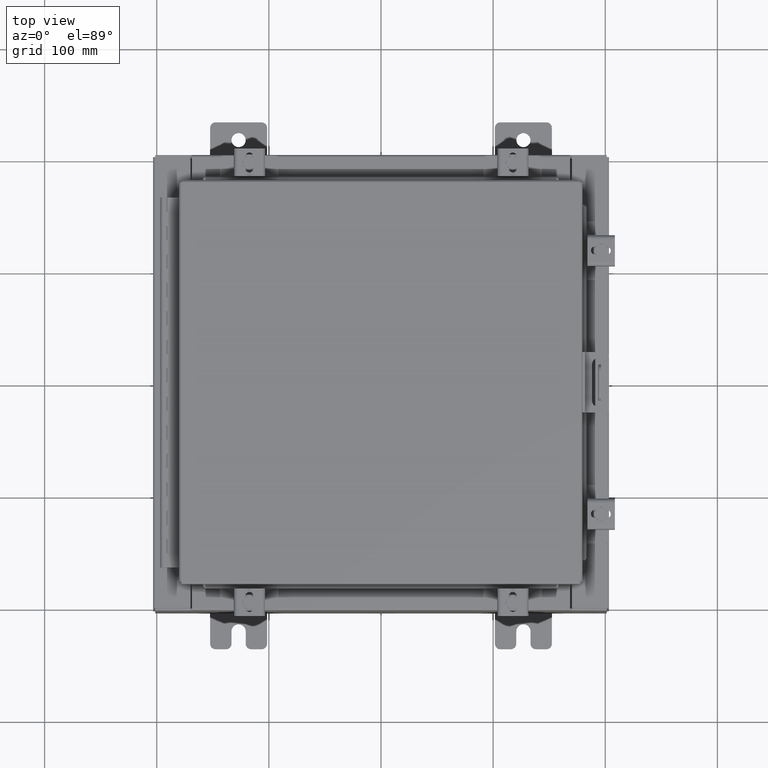
[diagram: clean part render]
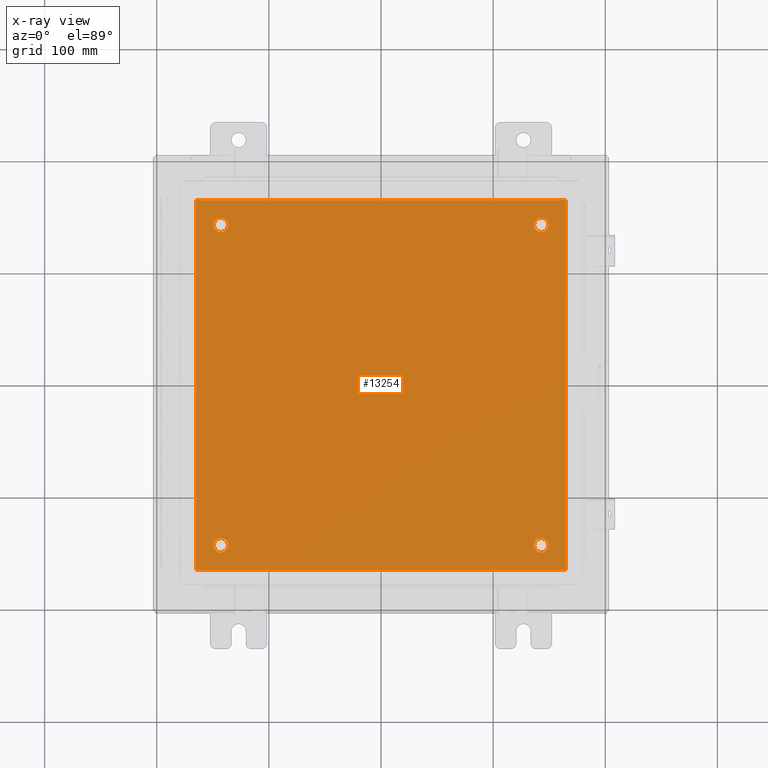
[diagram: x-ray — body ghosted, one internal face saturated and labeled with its STEP entity id]
A machine part, top view, then the same camera in x-ray: the body is ghosted and one INTERNAL B-rep face — a face not visible from any outside direction — is saturated and labeled: STEP entity #13254.
In plain terms, the highlighted planar face has unit normal (0, 0, -1).
Its self-contained STEP definition (entity closure, byte-faithful):
#26 = CARTESIAN_POINT ( 'NONE',  ( 5.625000000000002700, 5.625000000000000900, -0.1039999999999999800 ) ) ;
#244 = EDGE_CURVE ( 'NONE', #3936, #2826, #25304, .T. ) ;
#536 = CIRCLE ( 'NONE', #16448, 0.2499999999999998100 ) ;
#596 = DIRECTION ( 'NONE',  ( -0.0000000000000000000, -0.0000000000000000000, 1.000000000000000000 ) ) ;
#855 = CARTESIAN_POINT ( 'NONE',  ( -6.500000000000000000, 6.500000000000000900, -0.1039999999999999800 ) ) ;
#889 = DIRECTION ( 'NONE',  ( -1.000000000000000000, -0.0000000000000000000, -0.0000000000000000000 ) ) ;
#1028 = DIRECTION ( 'NONE',  ( -1.000000000000000000, 0.0000000000000000000, -0.0000000000000000000 ) ) ;
#1221 = VECTOR ( 'NONE', #6031, 39.37007874015748100 ) ;
#1393 = CARTESIAN_POINT ( 'NONE',  ( 6.500000000000000000, 6.500000000000000900, -0.1039999999999999800 ) ) ;
#1454 = VERTEX_POINT ( 'NONE', #15500 ) ;
#1573 = EDGE_CURVE ( 'NONE', #3767, #3630, #22411, .T. ) ;
#1690 = ORIENTED_EDGE ( 'NONE', *, *, #17272, .T. ) ;
#1705 = LINE ( 'NONE', #13013, #5186 ) ;
#1847 = CARTESIAN_POINT ( 'NONE',  ( 6.500000000000000000, -6.499999999999999100, -0.1039999999999999800 ) ) ;
#2002 = CARTESIAN_POINT ( 'NONE',  ( -5.375000000000002700, -5.625000000000000900, -0.1039999999999999800 ) ) ;
#2045 = DIRECTION ( 'NONE',  ( -1.000000000000000000, 0.0000000000000000000, 0.0000000000000000000 ) ) ;
#2656 = CARTESIAN_POINT ( 'NONE',  ( -6.500000000000000000, -6.499999999999999100, -0.1039999999999999800 ) ) ;
#2826 = VERTEX_POINT ( 'NONE', #20471 ) ;
#2830 = CIRCLE ( 'NONE', #19231, 0.2499999999999998100 ) ;
#2970 = FACE_BOUND ( 'NONE', #6253, .T. ) ;
#2989 = CARTESIAN_POINT ( 'NONE',  ( 0.0000000000000000000, 0.0000000000000000000, -0.1039999999999999800 ) ) ;
#3013 = ORIENTED_EDGE ( 'NONE', *, *, #6044, .F. ) ;
#3136 = DIRECTION ( 'NONE',  ( -0.0000000000000000000, -0.0000000000000000000, 1.000000000000000000 ) ) ;
#3222 = DIRECTION ( 'NONE',  ( -0.0000000000000000000, -0.0000000000000000000, 1.000000000000000000 ) ) ;
#3279 = VECTOR ( 'NONE', #18358, 39.37007874015748100 ) ;
#3376 = EDGE_LOOP ( 'NONE', ( #23029, #21194 ) ) ;
#3630 = VERTEX_POINT ( 'NONE', #1393 ) ;
#3767 = VERTEX_POINT ( 'NONE', #1847 ) ;
#3936 = VERTEX_POINT ( 'NONE', #16418 ) ;
#3944 = CARTESIAN_POINT ( 'NONE',  ( -5.625000000000002700, 5.625000000000000900, -0.1039999999999999800 ) ) ;
#4258 = CARTESIAN_POINT ( 'NONE',  ( -6.500000000000000000, -6.499999999999999100, -0.1039999999999999800 ) ) ;
#5186 = VECTOR ( 'NONE', #889, 39.37007874015748100 ) ;
#5781 = EDGE_CURVE ( 'NONE', #8130, #1454, #2830, .T. ) ;
#5941 = CARTESIAN_POINT ( 'NONE',  ( -6.500000000000000000, -6.499999999999999100, -0.1039999999999999800 ) ) ;
#5964 = DIRECTION ( 'NONE',  ( -1.000000000000000000, 0.0000000000000000000, 0.0000000000000000000 ) ) ;
#6020 = EDGE_LOOP ( 'NONE', ( #8576, #21253, #3013, #13010 ) ) ;
#6031 = DIRECTION ( 'NONE',  ( -0.0000000000000000000, -1.000000000000000000, -0.0000000000000000000 ) ) ;
#6044 = EDGE_CURVE ( 'NONE', #16410, #12501, #6606, .T. ) ;
#6198 = EDGE_CURVE ( 'NONE', #13596, #12123, #10114, .T. ) ;
#6253 = EDGE_LOOP ( 'NONE', ( #12898, #21062 ) ) ;
#6327 = AXIS2_PLACEMENT_3D ( 'NONE', #2989, #13152, #1028 ) ;
#6606 = LINE ( 'NONE', #5941, #1221 ) ;
#6956 = VECTOR ( 'NONE', #21127, 39.37007874015748100 ) ;
#6958 = VERTEX_POINT ( 'NONE', #8946 ) ;
#7318 = CARTESIAN_POINT ( 'NONE',  ( -5.625000000000002700, -5.625000000000000900, -0.1039999999999999800 ) ) ;
#7499 = AXIS2_PLACEMENT_3D ( 'NONE', #7318, #21421, #9367 ) ;
#7707 = FACE_OUTER_BOUND ( 'NONE', #6020, .T. ) ;
#7725 = CARTESIAN_POINT ( 'NONE',  ( 5.875000000000000900, -5.625000000000000900, -0.1039999999999999800 ) ) ;
#7908 = CARTESIAN_POINT ( 'NONE',  ( 5.625000000000002700, -5.625000000000000900, -0.1039999999999999800 ) ) ;
#8130 = VERTEX_POINT ( 'NONE', #2002 ) ;
#8575 = EDGE_CURVE ( 'NONE', #12123, #13596, #536, .T. ) ;
#8576 = ORIENTED_EDGE ( 'NONE', *, *, #1573, .F. ) ;
#8946 = CARTESIAN_POINT ( 'NONE',  ( 5.375000000000003600, -5.625000000000000900, -0.1039999999999999800 ) ) ;
#9010 = CIRCLE ( 'NONE', #19020, 0.2499999999999987000 ) ;
#9030 = CIRCLE ( 'NONE', #7499, 0.2499999999999998100 ) ;
#9367 = DIRECTION ( 'NONE',  ( -1.000000000000000000, 0.0000000000000000000, 0.0000000000000000000 ) ) ;
#9917 = ORIENTED_EDGE ( 'NONE', *, *, #25926, .T. ) ;
#9959 = DIRECTION ( 'NONE',  ( -1.000000000000000000, 0.0000000000000000000, 0.0000000000000000000 ) ) ;
#10114 = CIRCLE ( 'NONE', #11495, 0.2499999999999998100 ) ;
#10561 = DIRECTION ( 'NONE',  ( -0.0000000000000000000, -0.0000000000000000000, 1.000000000000000000 ) ) ;
#10991 = AXIS2_PLACEMENT_3D ( 'NONE', #26, #14162, #2045 ) ;
#11385 = CARTESIAN_POINT ( 'NONE',  ( 5.625000000000002700, 5.625000000000000900, -0.1039999999999999800 ) ) ;
#11495 = AXIS2_PLACEMENT_3D ( 'NONE', #22596, #10561, #24637 ) ;
#12123 = VERTEX_POINT ( 'NONE', #19440 ) ;
#12501 = VERTEX_POINT ( 'NONE', #2656 ) ;
#12898 = ORIENTED_EDGE ( 'NONE', *, *, #15444, .T. ) ;
#13010 = ORIENTED_EDGE ( 'NONE', *, *, #19619, .F. ) ;
#13013 = CARTESIAN_POINT ( 'NONE',  ( -6.500000000000000000, 6.500000000000000900, -0.1039999999999999800 ) ) ;
#13095 = FACE_BOUND ( 'NONE', #14654, .T. ) ;
#13145 = AXIS2_PLACEMENT_3D ( 'NONE', #7908, #22000, #9959 ) ;
#13152 = DIRECTION ( 'NONE',  ( 0.0000000000000000000, 0.0000000000000000000, -1.000000000000000000 ) ) ;
#13254 = ADVANCED_FACE ( 'NONE', ( #18433, #2970, #13095, #13726, #7707 ), #25196, .T. ) ;
#13596 = VERTEX_POINT ( 'NONE', #18015 ) ;
#13726 = FACE_BOUND ( 'NONE', #3376, .T. ) ;
#13844 = ORIENTED_EDGE ( 'NONE', *, *, #5781, .T. ) ;
#14162 = DIRECTION ( 'NONE',  ( -0.0000000000000000000, -0.0000000000000000000, 1.000000000000000000 ) ) ;
#14654 = EDGE_LOOP ( 'NONE', ( #23130, #1690 ) ) ;
#15219 = CARTESIAN_POINT ( 'NONE',  ( -5.625000000000002700, -5.625000000000000900, -0.1039999999999999800 ) ) ;
#15259 = EDGE_CURVE ( 'NONE', #6958, #21097, #9010, .T. ) ;
#15319 = CARTESIAN_POINT ( 'NONE',  ( 5.625000000000002700, -5.625000000000000900, -0.1039999999999999800 ) ) ;
#15444 = EDGE_CURVE ( 'NONE', #21097, #6958, #21272, .T. ) ;
#15500 = CARTESIAN_POINT ( 'NONE',  ( -5.875000000000001800, -5.625000000000000900, -0.1039999999999999800 ) ) ;
#16084 = EDGE_CURVE ( 'NONE', #12501, #3767, #20005, .T. ) ;
#16410 = VERTEX_POINT ( 'NONE', #855 ) ;
#16412 = EDGE_LOOP ( 'NONE', ( #13844, #9917 ) ) ;
#16418 = CARTESIAN_POINT ( 'NONE',  ( 5.875000000000000900, 5.625000000000000900, -0.1039999999999999800 ) ) ;
#16448 = AXIS2_PLACEMENT_3D ( 'NONE', #3944, #18057, #5964 ) ;
#17253 = DIRECTION ( 'NONE',  ( -1.000000000000000000, 0.0000000000000000000, 0.0000000000000000000 ) ) ;
#17272 = EDGE_CURVE ( 'NONE', #2826, #3936, #20261, .T. ) ;
#17355 = DIRECTION ( 'NONE',  ( -1.000000000000000000, 0.0000000000000000000, 0.0000000000000000000 ) ) ;
#18015 = CARTESIAN_POINT ( 'NONE',  ( -5.875000000000001800, 5.625000000000000900, -0.1039999999999999800 ) ) ;
#18057 = DIRECTION ( 'NONE',  ( -0.0000000000000000000, -0.0000000000000000000, 1.000000000000000000 ) ) ;
#18238 = DIRECTION ( 'NONE',  ( -1.000000000000000000, 0.0000000000000000000, 0.0000000000000000000 ) ) ;
#18358 = DIRECTION ( 'NONE',  ( 1.000000000000000000, 0.0000000000000000000, 0.0000000000000000000 ) ) ;
#18433 = FACE_BOUND ( 'NONE', #16412, .T. ) ;
#19020 = AXIS2_PLACEMENT_3D ( 'NONE', #15319, #3222, #17355 ) ;
#19231 = AXIS2_PLACEMENT_3D ( 'NONE', #15219, #3136, #17253 ) ;
#19440 = CARTESIAN_POINT ( 'NONE',  ( -5.375000000000002700, 5.625000000000000900, -0.1039999999999999800 ) ) ;
#19619 = EDGE_CURVE ( 'NONE', #3630, #16410, #1705, .T. ) ;
#20005 = LINE ( 'NONE', #4258, #3279 ) ;
#20261 = CIRCLE ( 'NONE', #10991, 0.2499999999999987000 ) ;
#20471 = CARTESIAN_POINT ( 'NONE',  ( 5.375000000000003600, 5.625000000000000900, -0.1039999999999999800 ) ) ;
#20961 = CARTESIAN_POINT ( 'NONE',  ( 6.500000000000000000, -6.499999999999999100, -0.1039999999999999800 ) ) ;
#21062 = ORIENTED_EDGE ( 'NONE', *, *, #15259, .T. ) ;
#21097 = VERTEX_POINT ( 'NONE', #7725 ) ;
#21127 = DIRECTION ( 'NONE',  ( 0.0000000000000000000, 1.000000000000000000, 0.0000000000000000000 ) ) ;
#21194 = ORIENTED_EDGE ( 'NONE', *, *, #6198, .T. ) ;
#21253 = ORIENTED_EDGE ( 'NONE', *, *, #16084, .F. ) ;
#21272 = CIRCLE ( 'NONE', #13145, 0.2499999999999987000 ) ;
#21421 = DIRECTION ( 'NONE',  ( -0.0000000000000000000, -0.0000000000000000000, 1.000000000000000000 ) ) ;
#22000 = DIRECTION ( 'NONE',  ( -0.0000000000000000000, -0.0000000000000000000, 1.000000000000000000 ) ) ;
#22411 = LINE ( 'NONE', #20961, #6956 ) ;
#22596 = CARTESIAN_POINT ( 'NONE',  ( -5.625000000000002700, 5.625000000000000900, -0.1039999999999999800 ) ) ;
#23029 = ORIENTED_EDGE ( 'NONE', *, *, #8575, .T. ) ;
#23130 = ORIENTED_EDGE ( 'NONE', *, *, #244, .T. ) ;
#24637 = DIRECTION ( 'NONE',  ( -1.000000000000000000, 0.0000000000000000000, 0.0000000000000000000 ) ) ;
#25196 = PLANE ( 'NONE',  #6327 ) ;
#25304 = CIRCLE ( 'NONE', #25474, 0.2499999999999987000 ) ;
#25474 = AXIS2_PLACEMENT_3D ( 'NONE', #11385, #596, #18238 ) ;
#25926 = EDGE_CURVE ( 'NONE', #1454, #8130, #9030, .T. ) ;